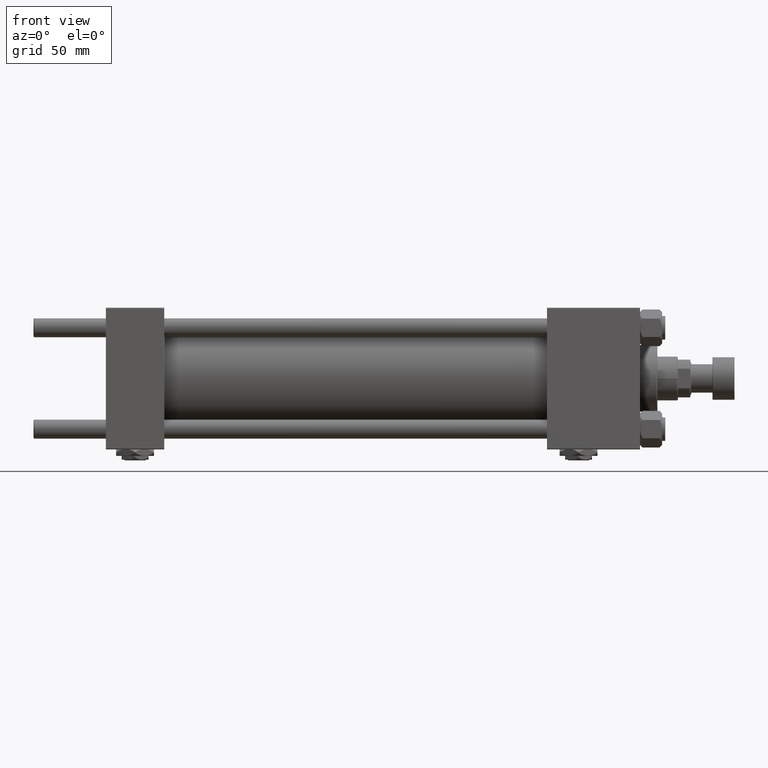
[diagram: clean part render]
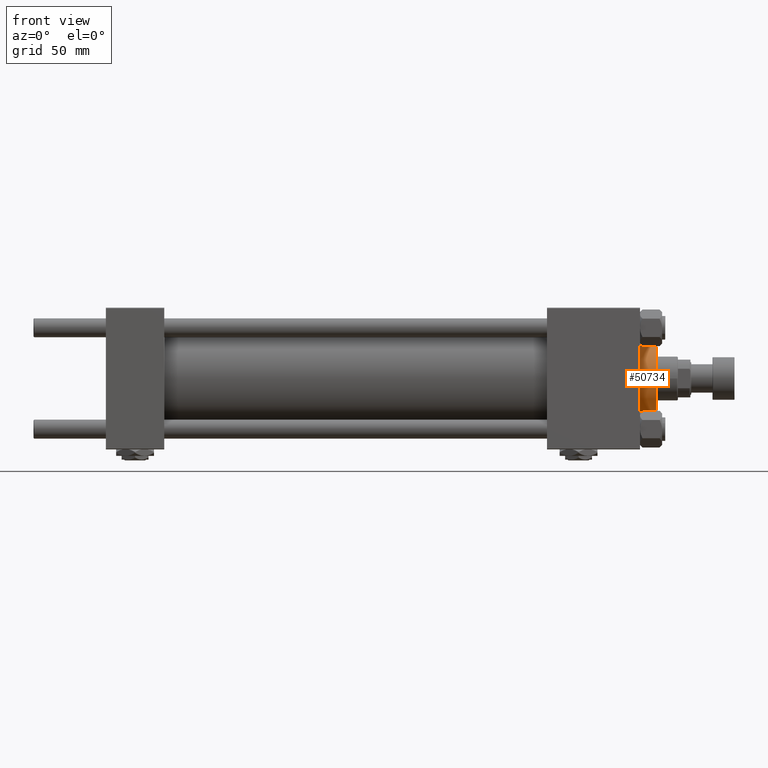
[diagram: same view with one face highlighted and labeled with its STEP entity id]
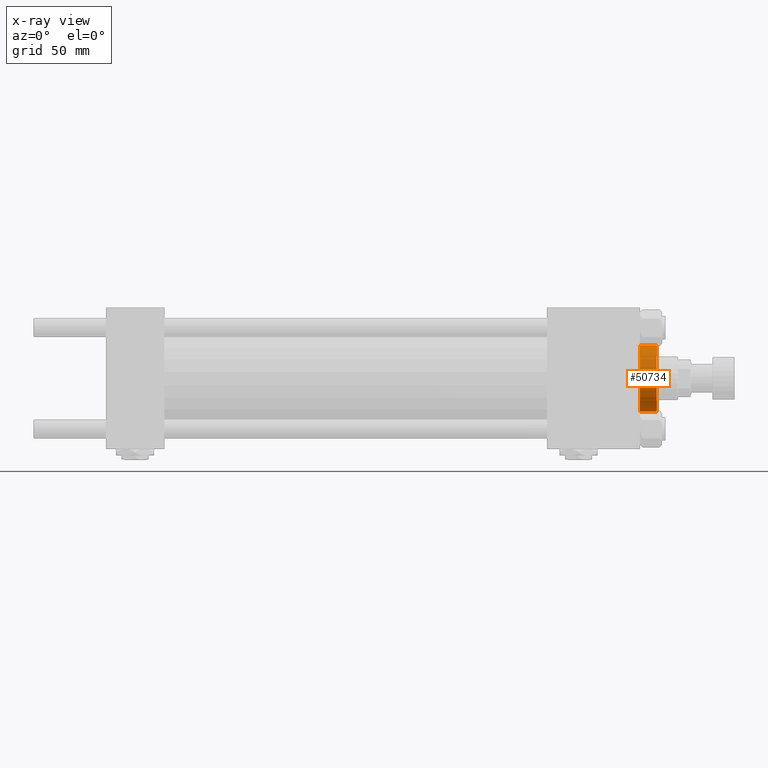
[diagram: x-ray of the same camera — body ghosted, the highlighted face saturated]
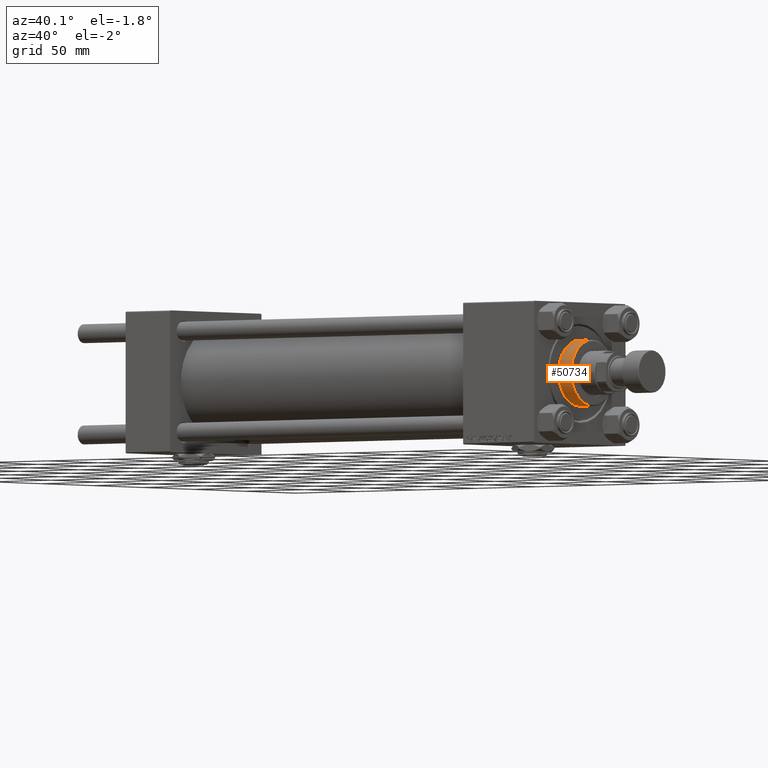
[diagram: same view with one face highlighted and labeled with its STEP entity id]
A machine part, front view. The second image highlights one B-rep face of the part: STEP entity #50734.
The next image is the same camera in x-ray: the body ghosted, the highlighted face saturated — about 0% of this face is hidden behind the body in this view.
A second angle (auxiliary view) of the same face is appended — the face is thin or edge-on in the first view.
In plain terms, the highlighted cylindrical surface (edge-blend (fillet) strip) has radius 21 mm, axis along (-1, -0, 0).
Its self-contained STEP definition (entity closure, byte-faithful):
#1614 = ORIENTED_EDGE ( 'NONE', *, *, #13765, .T. ) ;
#5191 = EDGE_LOOP ( 'NONE', ( #48216, #1614, #17343, #6238 ) ) ;
#5267 = AXIS2_PLACEMENT_3D ( 'NONE', #9651, #25503, #41404 ) ;
#6238 = ORIENTED_EDGE ( 'NONE', *, *, #30019, .T. ) ;
#9364 = CYLINDRICAL_SURFACE ( 'NONE', #51152, 21.00000000000000000 ) ;
#9651 = CARTESIAN_POINT ( 'NONE',  ( 0.000000000000000000, 0.000000000000000000, 39.19999999999999574 ) ) ;
#13759 = VECTOR ( 'NONE', #46778, 1000.000000000000000 ) ;
#13765 = EDGE_CURVE ( 'NONE', #41971, #20516, #50888, .T. ) ;
#15748 = EDGE_CURVE ( 'NONE', #20516, #28892, #50228, .T. ) ;
#15906 = DIRECTION ( 'NONE',  ( 0.000000000000000000, 0.000000000000000000, 1.000000000000000000 ) ) ;
#17343 = ORIENTED_EDGE ( 'NONE', *, *, #15748, .T. ) ;
#20516 = VERTEX_POINT ( 'NONE', #36073 ) ;
#22561 = CARTESIAN_POINT ( 'NONE',  ( 0.000000000000000000, 0.000000000000000000, 39.69999999999999574 ) ) ;
#23636 = CARTESIAN_POINT ( 'NONE',  ( 21.00000000000000000, 2.571758278209441661E-15, 39.69999999999999574 ) ) ;
#25503 = DIRECTION ( 'NONE',  ( 0.000000000000000000, 0.000000000000000000, -1.000000000000000000 ) ) ;
#25839 = EDGE_CURVE ( 'NONE', #41971, #42061, #35280, .T. ) ;
#26513 = FACE_OUTER_BOUND ( 'NONE', #5191, .T. ) ;
#27530 = VECTOR ( 'NONE', #30516, 1000.000000000000000 ) ;
#27722 = CARTESIAN_POINT ( 'NONE',  ( 21.00000000000000000, 2.571758278209441661E-15, 28.69999999999999929 ) ) ;
#28892 = VERTEX_POINT ( 'NONE', #50258 ) ;
#30019 = EDGE_CURVE ( 'NONE', #28892, #42061, #46240, .T. ) ;
#30230 = DIRECTION ( 'NONE',  ( -1.000000000000000000, 0.000000000000000000, 0.000000000000000000 ) ) ;
#30516 = DIRECTION ( 'NONE',  ( -0.000000000000000000, -0.000000000000000000, -1.000000000000000000 ) ) ;
#32042 = DIRECTION ( 'NONE',  ( 1.000000000000000000, 0.000000000000000000, 0.000000000000000000 ) ) ;
#35280 = LINE ( 'NONE', #23636, #27530 ) ;
#36073 = CARTESIAN_POINT ( 'NONE',  ( -21.00000000000000000, 0.000000000000000000, 39.19999999999999574 ) ) ;
#38648 = AXIS2_PLACEMENT_3D ( 'NONE', #52156, #15906, #32042 ) ;
#41404 = DIRECTION ( 'NONE',  ( 1.000000000000000000, 0.000000000000000000, 0.000000000000000000 ) ) ;
#41630 = DIRECTION ( 'NONE',  ( -0.000000000000000000, -0.000000000000000000, -1.000000000000000000 ) ) ;
#41971 = VERTEX_POINT ( 'NONE', #42052 ) ;
#42052 = CARTESIAN_POINT ( 'NONE',  ( 21.00000000000000000, 2.571758278209441661E-15, 39.19999999999999574 ) ) ;
#42061 = VERTEX_POINT ( 'NONE', #27722 ) ;
#45735 = CARTESIAN_POINT ( 'NONE',  ( -21.00000000000000000, 0.000000000000000000, 39.69999999999999574 ) ) ;
#46240 = CIRCLE ( 'NONE', #38648, 21.00000000000000000 ) ;
#46778 = DIRECTION ( 'NONE',  ( -0.000000000000000000, -0.000000000000000000, -1.000000000000000000 ) ) ;
#48216 = ORIENTED_EDGE ( 'NONE', *, *, #25839, .F. ) ;
#50228 = LINE ( 'NONE', #45735, #13759 ) ;
#50258 = CARTESIAN_POINT ( 'NONE',  ( -21.00000000000000000, 0.000000000000000000, 28.69999999999999929 ) ) ;
#50734 = ADVANCED_FACE ( 'NONE', ( #26513 ), #9364, .T. ) ;
#50888 = CIRCLE ( 'NONE', #5267, 21.00000000000000000 ) ;
#51152 = AXIS2_PLACEMENT_3D ( 'NONE', #22561, #41630, #30230 ) ;
#52156 = CARTESIAN_POINT ( 'NONE',  ( 0.000000000000000000, 0.000000000000000000, 28.69999999999999929 ) ) ;